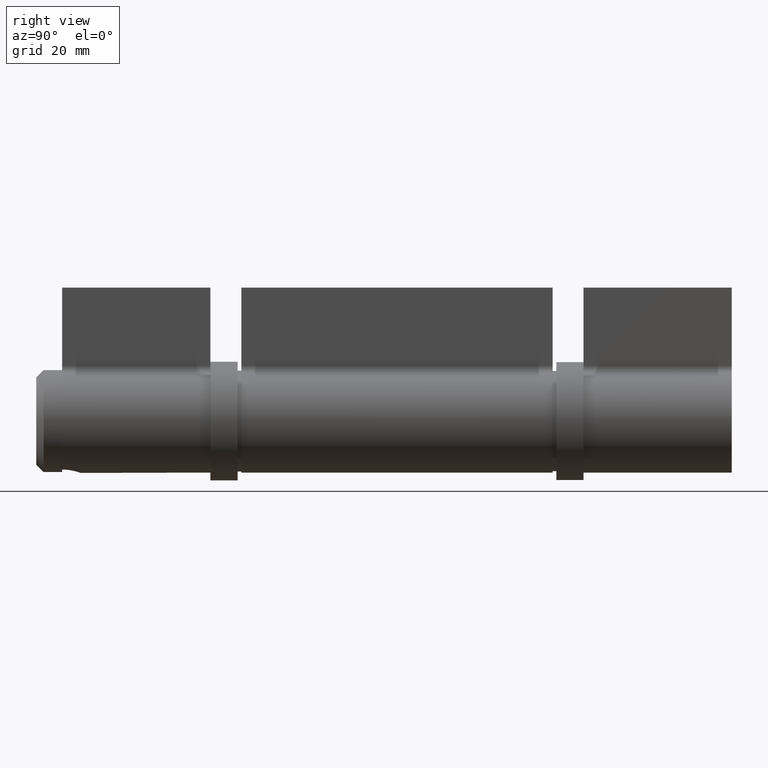
[diagram: clean part render]
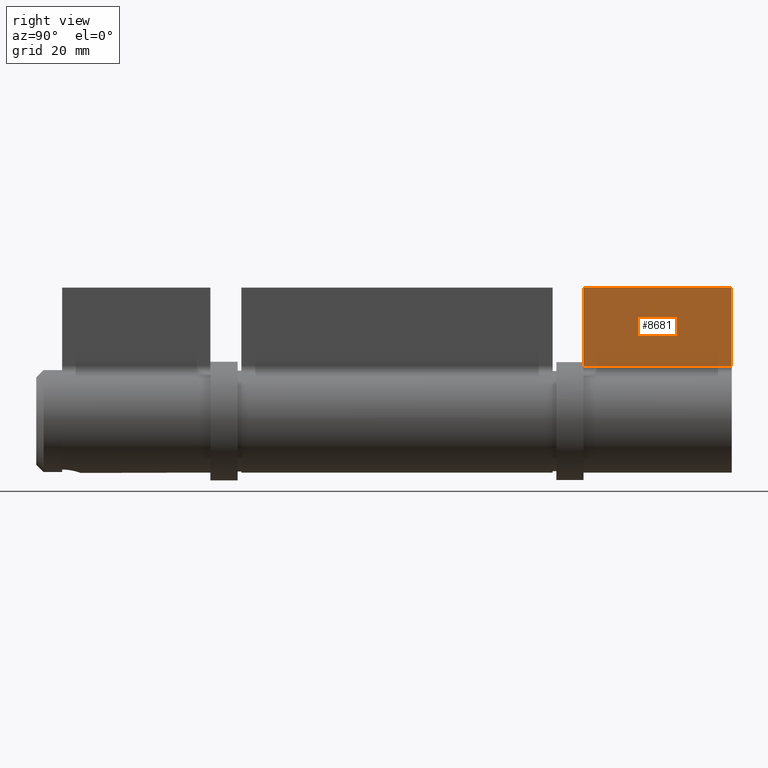
[diagram: same view with one face highlighted and labeled with its STEP entity id]
A machine part, right view. The second image highlights one B-rep face of the part: STEP entity #8681.
In plain terms, the highlighted planar face has unit normal (1, 0, -0).
Its self-contained STEP definition (entity closure, byte-faithful):
#588 = CARTESIAN_POINT ( 'NONE',  ( -4.049999999999999822, -20.00000000000000000, -0.000000000000000000 ) ) ;
#834 = ORIENTED_EDGE ( 'NONE', *, *, #4652, .F. ) ;
#1100 = FACE_OUTER_BOUND ( 'NONE', #3359, .T. ) ;
#1345 = LINE ( 'NONE', #588, #9713 ) ;
#1552 = VERTEX_POINT ( 'NONE', #8389 ) ;
#1582 = EDGE_CURVE ( 'NONE', #1739, #6876, #1345, .T. ) ;
#1739 = VERTEX_POINT ( 'NONE', #6032 ) ;
#1817 = DIRECTION ( 'NONE',  ( 0.000000000000000000, 0.000000000000000000, 1.000000000000000000 ) ) ;
#1916 = PLANE ( 'NONE',  #3746 ) ;
#2713 = DIRECTION ( 'NONE',  ( -1.000000000000000000, 0.000000000000000000, 0.000000000000000000 ) ) ;
#3049 = CARTESIAN_POINT ( 'NONE',  ( -4.049999999999999822, 20.00000000000000000, -14.81207277864917948 ) ) ;
#3359 = EDGE_LOOP ( 'NONE', ( #7567, #834, #10008, #5830 ) ) ;
#3660 = DIRECTION ( 'NONE',  ( 0.000000000000000000, 0.000000000000000000, -1.000000000000000000 ) ) ;
#3746 = AXIS2_PLACEMENT_3D ( 'NONE', #7457, #2713, #1817 ) ;
#3774 = VECTOR ( 'NONE', #8552, 1000.000000000000000 ) ;
#3989 = DIRECTION ( 'NONE',  ( -0.000000000000000000, -1.000000000000000000, -0.000000000000000000 ) ) ;
#4552 = EDGE_CURVE ( 'NONE', #1552, #5152, #5866, .T. ) ;
#4652 = EDGE_CURVE ( 'NONE', #1552, #1739, #7105, .T. ) ;
#5152 = VERTEX_POINT ( 'NONE', #5860 ) ;
#5211 = DIRECTION ( 'NONE',  ( -0.000000000000000000, -1.000000000000000000, -0.000000000000000000 ) ) ;
#5284 = CARTESIAN_POINT ( 'NONE',  ( -4.049999999999999822, 20.00000000000000000, -36.00000000000000000 ) ) ;
#5830 = ORIENTED_EDGE ( 'NONE', *, *, #9679, .T. ) ;
#5860 = CARTESIAN_POINT ( 'NONE',  ( -4.049999999999999822, 20.00000000000000000, -36.00000000000000000 ) ) ;
#5866 = LINE ( 'NONE', #8218, #3774 ) ;
#6032 = CARTESIAN_POINT ( 'NONE',  ( -4.049999999999999822, -20.00000000000000000, -14.81207277864917948 ) ) ;
#6284 = LINE ( 'NONE', #5284, #6772 ) ;
#6772 = VECTOR ( 'NONE', #5211, 1000.000000000000000 ) ;
#6876 = VERTEX_POINT ( 'NONE', #8668 ) ;
#7105 = LINE ( 'NONE', #3049, #8455 ) ;
#7457 = CARTESIAN_POINT ( 'NONE',  ( -4.049999999999999822, 20.00000000000000000, 0.000000000000000000 ) ) ;
#7567 = ORIENTED_EDGE ( 'NONE', *, *, #1582, .F. ) ;
#8218 = CARTESIAN_POINT ( 'NONE',  ( -4.049999999999999822, 20.00000000000000000, 0.000000000000000000 ) ) ;
#8389 = CARTESIAN_POINT ( 'NONE',  ( -4.049999999999999822, 20.00000000000000000, -14.81207277864917948 ) ) ;
#8455 = VECTOR ( 'NONE', #3989, 1000.000000000000000 ) ;
#8552 = DIRECTION ( 'NONE',  ( 0.000000000000000000, 0.000000000000000000, -1.000000000000000000 ) ) ;
#8668 = CARTESIAN_POINT ( 'NONE',  ( -4.049999999999999822, -20.00000000000000000, -36.00000000000000000 ) ) ;
#8681 = ADVANCED_FACE ( 'NONE', ( #1100 ), #1916, .T. ) ;
#9679 = EDGE_CURVE ( 'NONE', #5152, #6876, #6284, .T. ) ;
#9713 = VECTOR ( 'NONE', #3660, 1000.000000000000000 ) ;
#10008 = ORIENTED_EDGE ( 'NONE', *, *, #4552, .T. ) ;